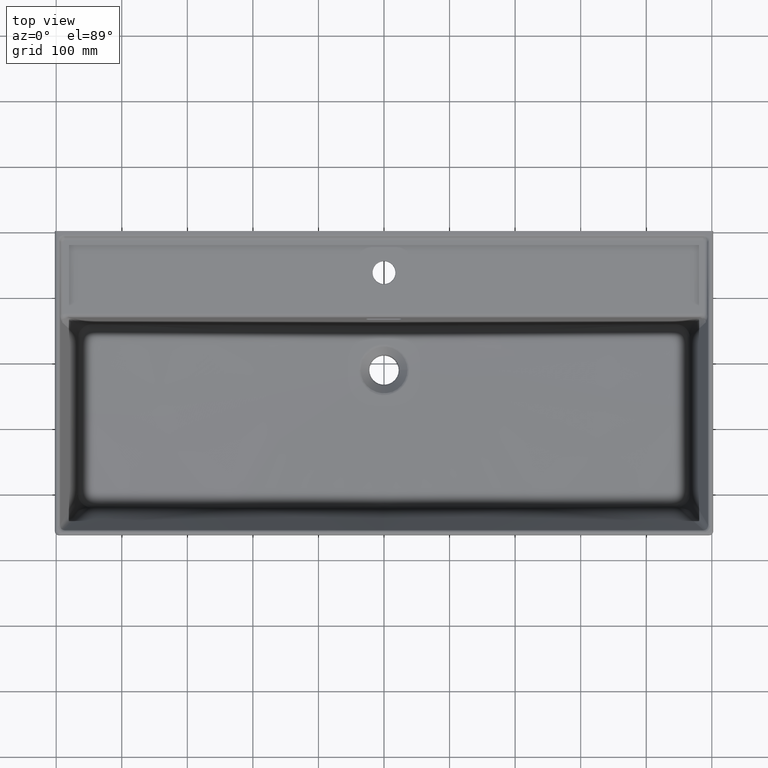
[diagram: clean part render]
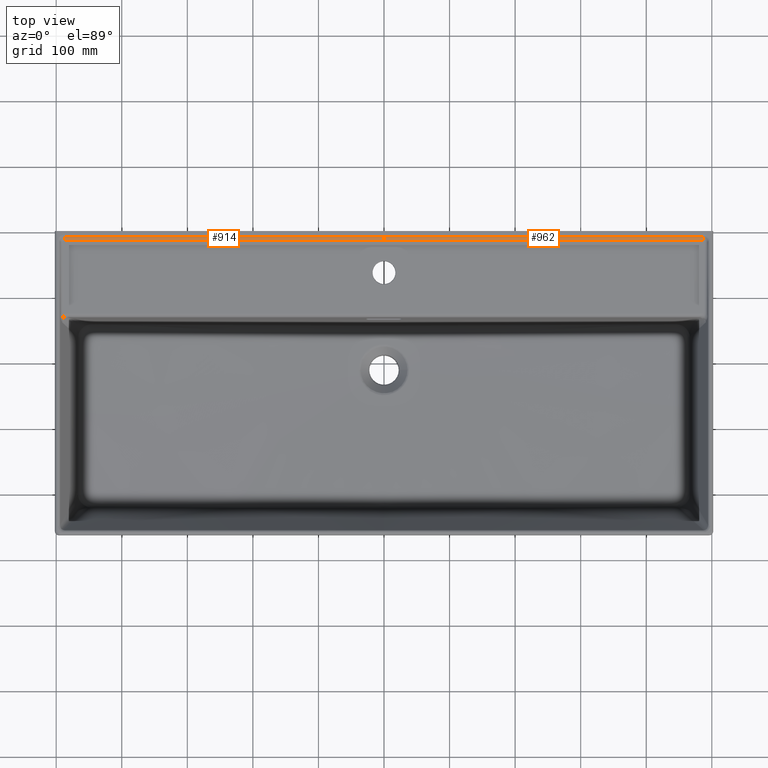
[diagram: same view with one multi-face feature highlighted, each face labeled with its STEP entity id]
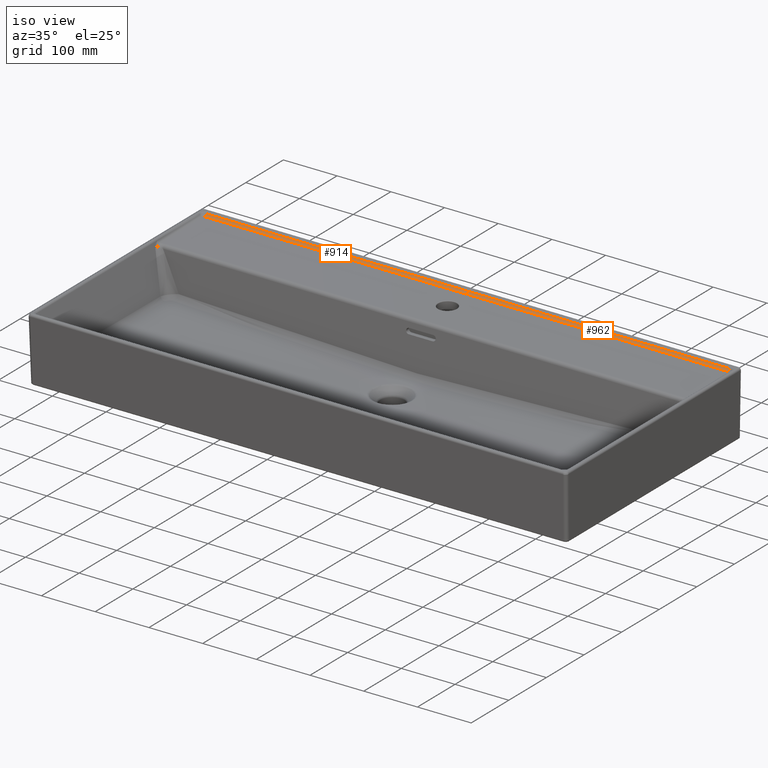
[diagram: same view with one multi-face feature highlighted, each face labeled with its STEP entity id]
A machine part, top view. The highlighted faces form ONE feature: a constant-radius fillet chain: 2 tangent blend faces with common blend radius 6 mm. The faces share edges in the B-rep.
A second angle (iso view) of the same feature is appended — it is thin or edge-on in the first view.
Their STEP definitions:
[1] entity #962 (Cylinder):
#139=CYLINDRICAL_SURFACE('',#5778,6.);
#528=LINE('',#8582,#663);
#602=LINE('',#12202,#739);
#663=VECTOR('',#6166,1.);
#739=VECTOR('',#6478,1.);
#962=ADVANCED_FACE('',(#1320),#139,.F.);
#1320=FACE_OUTER_BOUND('',#1707,.T.);
#1707=EDGE_LOOP('',(#2896,#2897,#2898,#2899));
#1990=CIRCLE('',#5734,6.);
#2003=CIRCLE('',#5777,6.);
#2896=ORIENTED_EDGE('',*,*,#4768,.T.);
#2897=ORIENTED_EDGE('',*,*,#4568,.T.);
#2898=ORIENTED_EDGE('',*,*,#4896,.T.);
#2899=ORIENTED_EDGE('',*,*,#4897,.F.);
#4074=VERTEX_POINT('',#8583);
#4075=VERTEX_POINT('',#8584);
#4231=VERTEX_POINT('',#10530);
#4321=VERTEX_POINT('',#12201);
#4568=EDGE_CURVE('',#4074,#4075,#528,.T.);
#4768=EDGE_CURVE('',#4231,#4074,#1990,.T.);
#4896=EDGE_CURVE('',#4075,#4321,#2003,.T.);
#4897=EDGE_CURVE('',#4231,#4321,#602,.T.);
#5734=AXIS2_PLACEMENT_3D('',#10529,#6367,#6368);
#5777=AXIS2_PLACEMENT_3D('',#12200,#6476,#6477);
#5778=AXIS2_PLACEMENT_3D('',#12203,#6479,#6480);
#6166=DIRECTION('',(1.,9.24828690916217E-12,1.6142944847421E-13));
#6367=DIRECTION('',(-1.,0.,0.));
#6368=DIRECTION('',(0.,0.,-1.));
#6476=DIRECTION('',(1.,9.24793107355258E-12,1.6142323734054E-13));
#6477=DIRECTION('',(-9.25185853854297E-12,1.,0.));
#6478=DIRECTION('',(1.,9.24828690916217E-12,1.61429448474211E-13));
#6479=DIRECTION('',(1.,9.24828690916217E-12,1.61429448474211E-13));
#6480=DIRECTION('',(9.25185853854297E-12,-1.,0.));
#8582=CARTESIAN_POINT('',(485.268426750455,-13.9683694315761,10.0374530642289));
#8583=CARTESIAN_POINT('',(0.,-13.968369436064,10.0374530641505));
#8584=CARTESIAN_POINT('',(486.857980819253,-13.9683694315614,10.0374530642291));
#10529=CARTESIAN_POINT('',(0.,-14.0730838746878,16.0365392350889));
#10530=CARTESIAN_POINT('',(0.,-8.88965083163104,13.0146156940065));
#12200=CARTESIAN_POINT('',(486.857980819253,-14.0730838701851,16.0365392351675));
#12201=CARTESIAN_POINT('',(486.857980819206,-8.88965082712844,13.0146156940851));
#12202=CARTESIAN_POINT('',(299.999999998873,-8.88965082885656,13.0146156940549));
#12203=CARTESIAN_POINT('',(299.99999999892,-14.0730838719133,16.0365392351373));
[2] entity #914 (Cylinder):
#129=CYLINDRICAL_SURFACE('',#5736,6.);
#529=LINE('',#8585,#664);
#580=LINE('',#10531,#716);
#664=VECTOR('',#6167,1.);
#716=VECTOR('',#6369,1.);
#914=ADVANCED_FACE('',(#1273),#129,.F.);
#1273=FACE_OUTER_BOUND('',#1658,.T.);
#1658=EDGE_LOOP('',(#2679,#2680,#2681,#2682));
#1990=CIRCLE('',#5734,6.);
#1991=CIRCLE('',#5735,6.);
#2679=ORIENTED_EDGE('',*,*,#4768,.F.);
#2680=ORIENTED_EDGE('',*,*,#4769,.T.);
#2681=ORIENTED_EDGE('',*,*,#4770,.F.);
#2682=ORIENTED_EDGE('',*,*,#4569,.F.);
#4074=VERTEX_POINT('',#8583);
#4076=VERTEX_POINT('',#8586);
#4231=VERTEX_POINT('',#10530);
#4232=VERTEX_POINT('',#10532);
#4569=EDGE_CURVE('',#4074,#4076,#529,.T.);
#4768=EDGE_CURVE('',#4231,#4074,#1990,.T.);
#4769=EDGE_CURVE('',#4231,#4232,#580,.T.);
#4770=EDGE_CURVE('',#4076,#4232,#1991,.T.);
#5734=AXIS2_PLACEMENT_3D('',#10529,#6367,#6368);
#5735=AXIS2_PLACEMENT_3D('',#10533,#6370,#6371);
#5736=AXIS2_PLACEMENT_3D('',#10534,#6372,#6373);
#6167=DIRECTION('',(-1.,9.24828690916217E-12,1.6142944847421E-13));
#6367=DIRECTION('',(-1.,0.,0.));
#6368=DIRECTION('',(0.,0.,-1.));
#6369=DIRECTION('',(-1.,9.24828690916217E-12,1.61429448474211E-13));
#6370=DIRECTION('',(1.,-9.24793107355258E-12,-1.6142323734054E-13));
#6371=DIRECTION('',(9.25185853854297E-12,1.,0.));
#6372=DIRECTION('',(-1.,9.24828690916217E-12,1.61429448474211E-13));
#6373=DIRECTION('',(-9.25185853854297E-12,-1.,0.));
#8583=CARTESIAN_POINT('',(0.,-13.968369436064,10.0374530641505));
#8585=CARTESIAN_POINT('',(-485.268426750455,-13.9683694315761,10.0374530642289));
#8586=CARTESIAN_POINT('',(-486.857980819253,-13.9683694315614,10.0374530642291));
#10529=CARTESIAN_POINT('',(0.,-14.0730838746878,16.0365392350889));
#10530=CARTESIAN_POINT('',(0.,-8.88965083163104,13.0146156940065));
#10531=CARTESIAN_POINT('',(-299.999999998873,-8.88965082885656,13.0146156940549));
#10532=CARTESIAN_POINT('',(-486.857980819206,-8.88965082712844,13.0146156940851));
#10533=CARTESIAN_POINT('',(-486.857980819253,-14.0730838701851,16.0365392351675));
#10534=CARTESIAN_POINT('',(-299.99999999892,-14.0730838719133,16.0365392351373));